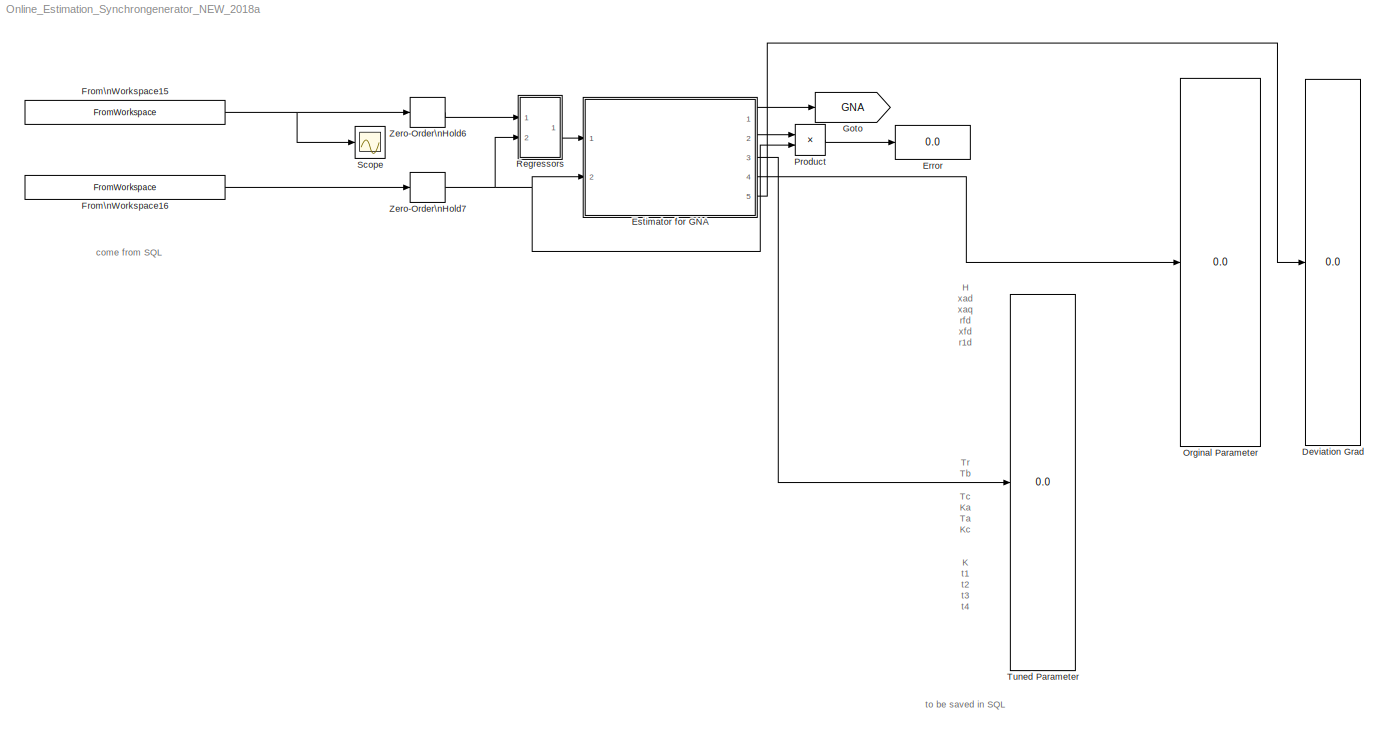
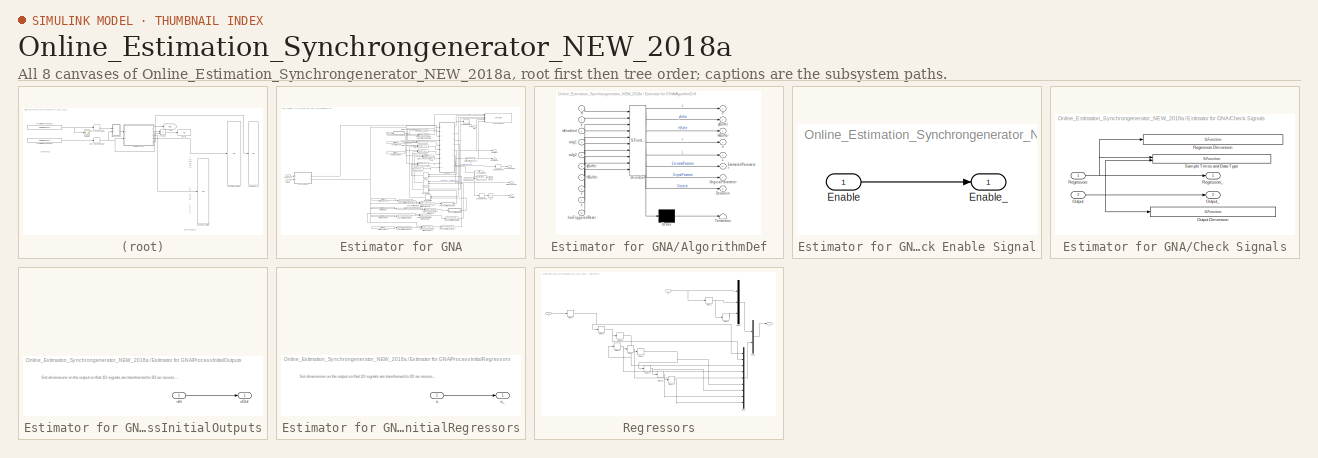
[diagram: thumbnail index - all 8 canvases of the model, root first then tree order]
MODEL Online_Estimation_Synchrongenerator_NEW_2018a
KIND model
BLOCK [Display] Deviation Grad
  Decimation = 1
  Ports = [1]
  SID = 1377
BLOCK [Display] Error
  Decimation = 1
  Ports = [1]
  SID = 1378
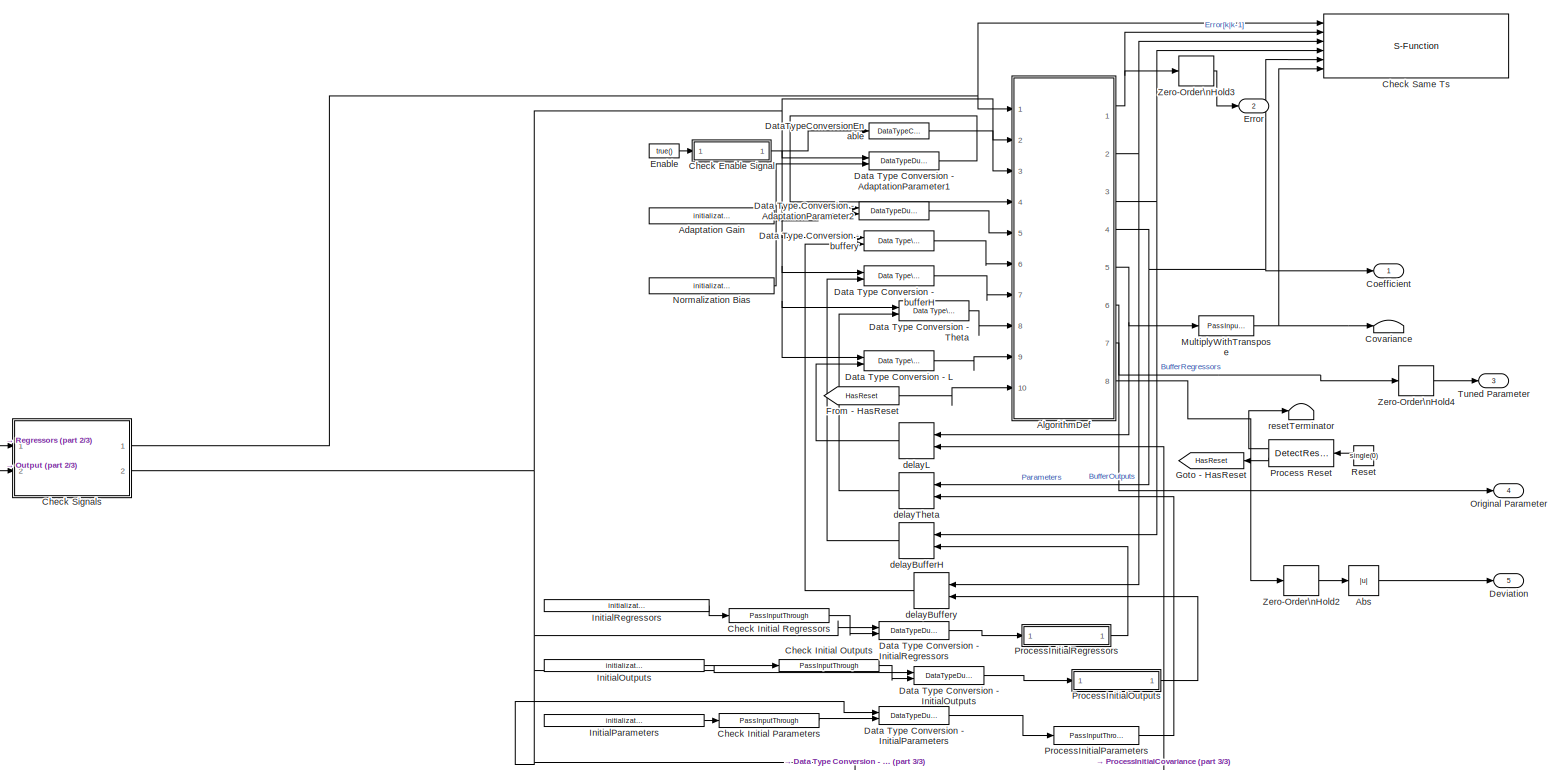
[diagram: Estimator for GNA - part 1/3, most of the canvas]
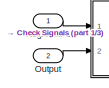
[diagram: Estimator for GNA - part 2/3, middle left region]
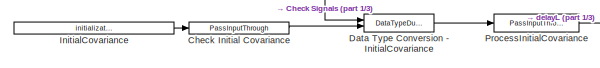
[diagram: Estimator for GNA - part 3/3, bottom center region]
BLOCK [SubSystem] Estimator for GNA
  Ports = [2, 5]
  RequestExecContextInheritance = off
  SID = 1797
BLOCK [Abs] Estimator for GNA/Abs
  SID = 1797:846
  SaturateOnIntegerOverflow = off
BLOCK [Constant] Estimator for GNA/Adaptation Gain
  OutDataTypeStr = Inherit: Inherit via back propagation
  SID = 1797:71
  Value = initializationParams.adg1
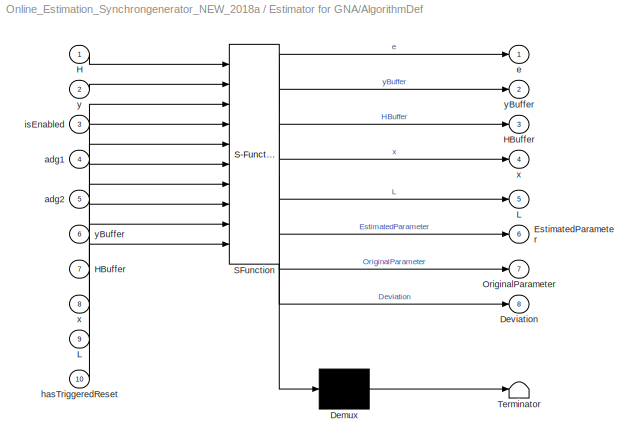
BLOCK [SubSystem] Estimator for GNA/AlgorithmDef
  ErrorFcn = Stateflow.Translate.translate
  PermitHierarchicalResolution = ExplicitOnly
  Ports = [10, 8]
  RequestExecContextInheritance = off
  SFBlockType = MATLAB Function
  SID = 1797:69
  SystemSampleTime = Ts
  TreatAsAtomicUnit = on
BLOCK [Demux] Estimator for GNA/AlgorithmDef/ Demux 
  Outputs = 1
  Ports = [1, 1]
  SID = 1797:69::470
BLOCK [S-Function] Estimator for GNA/AlgorithmDef/ SFunction 
  EnableBusSupport = on
  FunctionName = sf_sfun
  Parameters = algorithmParams
  PortCounts = [10 9]
  Ports = [10, 9]
  SFcnIsStateOwnerBlock = off
  SFunctionDeploymentMode = off
  SID = 1797:69::469
  Tag = Stateflow S-Function Online_Estimation_Synchrongenerator_NEW_2018a 2
BLOCK [Terminator] Estimator for GNA/AlgorithmDef/ Terminator 
  SID = 1797:69::471
BLOCK [Outport] Estimator for GNA/AlgorithmDef/Deviation
  IconDisplay = Port number
  Port = 8
  SID = 1797:69::455
  VectorParamsAs1DForOutWhenUnconnected = on
BLOCK [Outport] Estimator for GNA/AlgorithmDef/EstimatedParameter
  IconDisplay = Port number
  Port = 6
  SID = 1797:69::453
  VectorParamsAs1DForOutWhenUnconnected = on
BLOCK [Inport] Estimator for GNA/AlgorithmDef/H
  IconDisplay = Port number
  SID = 1797:69::23
BLOCK [Outport] Estimator for GNA/AlgorithmDef/HBuffer
  IconDisplay = Port number
  Port = 3
  SID = 1797:69::441
BLOCK [Inport] Estimator for GNA/AlgorithmDef/HBuffer 
  IconDisplay = Port number
  Port = 7
  SID = 1797:69::439
BLOCK [Outport] Estimator for GNA/AlgorithmDef/L
  IconDisplay = Port number
  Port = 5
  SID = 1797:69::36
BLOCK [Inport] Estimator for GNA/AlgorithmDef/L 
  IconDisplay = Port number
  Port = 9
  SID = 1797:69::35
BLOCK [Outport] Estimator for GNA/AlgorithmDef/OriginalParameter
  IconDisplay = Port number
  Port = 7
  SID = 1797:69::454
  VectorParamsAs1DForOutWhenUnconnected = on
BLOCK [Inport] Estimator for GNA/AlgorithmDef/adg1
  IconDisplay = Port number
  Port = 4
  SID = 1797:69::200
BLOCK [Inport] Estimator for GNA/AlgorithmDef/adg2
  IconDisplay = Port number
  Port = 5
  SID = 1797:69::423
BLOCK [Outport] Estimator for GNA/AlgorithmDef/e
  IconDisplay = Port number
  SID = 1797:69::32
BLOCK [Inport] Estimator for GNA/AlgorithmDef/hasTriggeredReset
  IconDisplay = Port number
  Port = 10
  SID = 1797:69::443
BLOCK [Inport] Estimator for GNA/AlgorithmDef/isEnabled
  IconDisplay = Port number
  Port = 3
  SID = 1797:69::58
BLOCK [Outport] Estimator for GNA/AlgorithmDef/x
  IconDisplay = Port number
  Port = 4
  SID = 1797:69::442
BLOCK [Inport] Estimator for GNA/AlgorithmDef/x 
  IconDisplay = Port number
  Port = 8
  SID = 1797:69::440
BLOCK [Inport] Estimator for GNA/AlgorithmDef/y
  IconDisplay = Port number
  Port = 2
  SID = 1797:69::1
BLOCK [Outport] Estimator for GNA/AlgorithmDef/yBuffer
  IconDisplay = Port number
  Port = 2
  SID = 1797:69::49
BLOCK [Inport] Estimator for GNA/AlgorithmDef/yBuffer 
  IconDisplay = Port number
  Port = 6
  SID = 1797:69::48
BLOCK [SubSystem] Estimator for GNA/Check Enable Signal
  Ports = [1, 1]
  RequestExecContextInheritance = off
  SID = 1797:622
BLOCK [Inport] Estimator for GNA/Check Enable Signal/Enable
  IconDisplay = Port number
  SID = 1797:623
BLOCK [Outport] Estimator for GNA/Check Enable Signal/Enable_
  IconDisplay = Port number
  SID = 1797:624
BLOCK [Reference] Estimator for GNA/Check Initial Covariance  REF=ctrlSharedLib/Utilities/PassInputThrough
  AllowZeroVariantControls = off
  GeneratePreprocessorConditionals = off
  Ports = [1, 1]
  PropagateVariantConditions = off
  SID = 1797:809
  ShowPortLabels = FromPortIcon
  SourceBlock = ctrlSharedLib/Utilities/PassInputThrough
  SourceProductBaseCode = CT
  SourceProductName = Control System Toolbox
  SystemSampleTime = -1
BLOCK [Reference] Estimator for GNA/Check Initial Outputs  REF=ctrlSharedLib/Utilities/PassInputThrough
  AllowZeroVariantControls = off
  GeneratePreprocessorConditionals = off
  Ports = [1, 1]
  PropagateVariantConditions = off
  SID = 1797:811
  ShowPortLabels = FromPortIcon
  SourceBlock = ctrlSharedLib/Utilities/PassInputThrough
  SourceProductBaseCode = CT
  SourceProductName = Control System Toolbox
  SystemSampleTime = -1
BLOCK [Reference] Estimator for GNA/Check Initial Parameters  REF=ctrlSharedLib/Utilities/PassInputThrough
  AllowZeroVariantControls = off
  GeneratePreprocessorConditionals = off
  Ports = [1, 1]
  PropagateVariantConditions = off
  SID = 1797:805
  ShowPortLabels = FromPortIcon
  SourceBlock = ctrlSharedLib/Utilities/PassInputThrough
  SourceProductBaseCode = CT
  SourceProductName = Control System Toolbox
  SystemSampleTime = -1
BLOCK [Reference] Estimator for GNA/Check Initial Regressors  REF=ctrlSharedLib/Utilities/PassInputThrough
  AllowZeroVariantControls = off
  GeneratePreprocessorConditionals = off
  Ports = [1, 1]
  PropagateVariantConditions = off
  SID = 1797:812
  ShowPortLabels = FromPortIcon
  SourceBlock = ctrlSharedLib/Utilities/PassInputThrough
  SourceProductBaseCode = CT
  SourceProductName = Control System Toolbox
  SystemSampleTime = -1
BLOCK [S-Function] Estimator for GNA/Check Same Ts
  EnableBusSupport = off
  FunctionName = idRecursiveEstimationCheckSameTs
  Parameters = get_param(gcbh,'Parent'), uint16(6)
  Ports = [6]
  SFcnIsStateOwnerBlock = off
  SFunctionDeploymentMode = off
  SID = 1797:827
BLOCK [SubSystem] Estimator for GNA/Check Signals
  Ports = [2, 2]
  RequestExecContextInheritance = off
  SID = 1797:460
BLOCK [Inport] Estimator for GNA/Check Signals/Output
  IconDisplay = Port number
  Port = 2
  SID = 1797:533
BLOCK [S-Function] Estimator for GNA/Check Signals/Output Dimension
  EnableBusSupport = off
  FunctionName = idRecursiveEstimationCheckSignalDimensionOutput
  Parameters = csp.estimatorBlockPath, csp.isUsingFrames
  Ports = [1]
  SFcnIsStateOwnerBlock = off
  SFunctionDeploymentMode = off
  SID = 1797:534
BLOCK [Outport] Estimator for GNA/Check Signals/Output_
  IconDisplay = Port number
  Port = 2
  SID = 1797:538
BLOCK [Inport] Estimator for GNA/Check Signals/Regressors
  IconDisplay = Port number
  SID = 1797:532
BLOCK [S-Function] Estimator for GNA/Check Signals/Regressors Dimension
  EnableBusSupport = off
  FunctionName = idRecursiveEstimationCheckSignalDimensionRLSRegressors
  Parameters = csp.estimatorBlockPath, csp.isInitialEstimateSourceInternal, algorithmParams.nParameters, csp.isUsingFrames
  Ports = [1]
  SFcnIsStateOwnerBlock = off
  SFunctionDeploymentMode = off
  SID = 1797:535
BLOCK [Outport] Estimator for GNA/Check Signals/Regressors_
  IconDisplay = Port number
  SID = 1797:537
BLOCK [S-Function] Estimator for GNA/Check Signals/Sample Times and Data Type
  EnableBusSupport = off
  FunctionName = idRecursiveEstimationCheckSignalTsAndDataType
  Parameters = csp.estimatorBlockPath, Ts, 'Regressors', 'Output',algorithmParams.nParameters
  Ports = [2]
  SFcnIsStateOwnerBlock = off
  SFunctionDeploymentMode = off
  SID = 1797:536
BLOCK [Outport] Estimator for GNA/Coefficient
  IconDisplay = Port number
  SID = 1797:79
  SignalType = real
  VarSizeSig = No
BLOCK [Terminator] Estimator for GNA/Covariance
  SID = 1797:97
BLOCK [Reference] Estimator for GNA/Data Type Conversion - AdaptationParameter1  REF=ctrlSharedLib/Utilities/DataTypeDuplicateAndOutput
  AllowZeroVariantControls = off
  GeneratePreprocessorConditionals = off
  Ports = [2, 1]
  PropagateVariantConditions = off
  SID = 1797:782
  ShowPortLabels = FromPortIcon
  SourceBlock = ctrlSharedLib/Utilities/DataTypeDuplicateAndOutput
  SourceProductBaseCode = CT
  SourceProductName = Control System Toolbox
  SourceType = ctrlDataTypeDuplicateAndOutput
  SystemSampleTime = -1
BLOCK [Reference] Estimator for GNA/Data Type Conversion - AdaptationParameter2  REF=ctrlSharedLib/Utilities/DataTypeDuplicateAndOutput
  AllowZeroVariantControls = off
  GeneratePreprocessorConditionals = off
  Ports = [2, 1]
  PropagateVariantConditions = off
  SID = 1797:784
  ShowPortLabels = FromPortIcon
  SourceBlock = ctrlSharedLib/Utilities/DataTypeDuplicateAndOutput
  SourceProductBaseCode = CT
  SourceProductName = Control System Toolbox
  SourceType = ctrlDataTypeDuplicateAndOutput
  SystemSampleTime = -1
BLOCK [Reference] Estimator for GNA/Data Type Conversion - InitialCovariance  REF=ctrlSharedLib/Utilities/DataTypeDuplicateAndOutput
  AllowZeroVariantControls = off
  GeneratePreprocessorConditionals = off
  Ports = [2, 1]
  PropagateVariantConditions = off
  SID = 1797:810
  ShowPortLabels = FromPortIcon
  SourceBlock = ctrlSharedLib/Utilities/DataTypeDuplicateAndOutput
  SourceProductBaseCode = CT
  SourceProductName = Control System Toolbox
  SourceType = ctrlDataTypeDuplicateAndOutput
  SystemSampleTime = -1
BLOCK [Reference] Estimator for GNA/Data Type Conversion - InitialOutputs  REF=ctrlSharedLib/Utilities/DataTypeDuplicateAndOutput
  AllowZeroVariantControls = off
  GeneratePreprocessorConditionals = off
  Ports = [2, 1]
  PropagateVariantConditions = off
  SID = 1797:813
  ShowPortLabels = FromPortIcon
  SourceBlock = ctrlSharedLib/Utilities/DataTypeDuplicateAndOutput
  SourceProductBaseCode = CT
  SourceProductName = Control System Toolbox
  SourceType = ctrlDataTypeDuplicateAndOutput
  SystemSampleTime = -1
BLOCK [Reference] Estimator for GNA/Data Type Conversion - InitialParameters  REF=ctrlSharedLib/Utilities/DataTypeDuplicateAndOutput
  AllowZeroVariantControls = off
  GeneratePreprocessorConditionals = off
  Ports = [2, 1]
  PropagateVariantConditions = off
  SID = 1797:806
  ShowPortLabels = FromPortIcon
  SourceBlock = ctrlSharedLib/Utilities/DataTypeDuplicateAndOutput
  SourceProductBaseCode = CT
  SourceProductName = Control System Toolbox
  SourceType = ctrlDataTypeDuplicateAndOutput
  SystemSampleTime = -1
BLOCK [Reference] Estimator for GNA/Data Type Conversion - InitialRegressors  REF=ctrlSharedLib/Utilities/DataTypeDuplicateAndOutput
  AllowZeroVariantControls = off
  GeneratePreprocessorConditionals = off
  Ports = [2, 1]
  PropagateVariantConditions = off
  SID = 1797:814
  ShowPortLabels = FromPortIcon
  SourceBlock = ctrlSharedLib/Utilities/DataTypeDuplicateAndOutput
  SourceProductBaseCode = CT
  SourceProductName = Control System Toolbox
  SourceType = ctrlDataTypeDuplicateAndOutput
  SystemSampleTime = -1
BLOCK [Reference] Estimator for GNA/Data Type Conversion - L  REF=simulink/Signal\nAttributes/Data Type\nConversion\nInherited
  ConvertRealWorld = Real World Value
  DoSatur = off
  Ports = [2, 1]
  RndMeth = Floor
  SID = 1797:64
  SourceBlock = simulink/Signal\nAttributes/Data Type\nConversion\nInherited
  SourceProductBaseCode = SL
  SourceProductName = Simulink
  SourceType = Conversion Inherited
BLOCK [Reference] Estimator for GNA/Data Type Conversion - Theta  REF=simulink/Signal\nAttributes/Data Type\nConversion\nInherited
  ConvertRealWorld = Real World Value
  DoSatur = off
  Ports = [2, 1]
  RndMeth = Floor
  SID = 1797:63
  SourceBlock = simulink/Signal\nAttributes/Data Type\nConversion\nInherited
  SourceProductBaseCode = SL
  SourceProductName = Simulink
  SourceType = Conversion Inherited
BLOCK [Reference] Estimator for GNA/Data Type Conversion - bufferH  REF=simulink/Signal\nAttributes/Data Type\nConversion\nInherited
  ConvertRealWorld = Real World Value
  DoSatur = off
  Ports = [2, 1]
  RndMeth = Floor
  SID = 1797:793
  SourceBlock = simulink/Signal\nAttributes/Data Type\nConversion\nInherited
  SourceProductBaseCode = SL
  SourceProductName = Simulink
  SourceType = Conversion Inherited
BLOCK [Reference] Estimator for GNA/Data Type Conversion - buffery  REF=simulink/Signal\nAttributes/Data Type\nConversion\nInherited
  ConvertRealWorld = Real World Value
  DoSatur = off
  Ports = [2, 1]
  RndMeth = Floor
  SID = 1797:794
  SourceBlock = simulink/Signal\nAttributes/Data Type\nConversion\nInherited
  SourceProductBaseCode = SL
  SourceProductName = Simulink
  SourceType = Conversion Inherited
BLOCK [DataTypeConversion] Estimator for GNA/DataTypeConversionEnable
  OutDataTypeStr = boolean
  RndMeth = Floor
  SID = 1797:766
  SaturateOnIntegerOverflow = off
BLOCK [Outport] Estimator for GNA/Deviation
  IconDisplay = Port number
  Port = 5
  SID = 1797:845
  VectorParamsAs1DForOutWhenUnconnected = on
BLOCK [Constant] Estimator for GNA/Enable
  OutDataTypeStr = boolean
  SID = 1797:95
  Value = true()
BLOCK [Outport] Estimator for GNA/Error
  IconDisplay = Port number
  Port = 2
  SID = 1797:837
  VectorParamsAs1DForOutWhenUnconnected = on
BLOCK [From] Estimator for GNA/From - HasReset
  GotoTag = HasReset
  SID = 1797:822
BLOCK [Goto] Estimator for GNA/Goto - HasReset
  GotoTag = HasReset
  SID = 1797:821
BLOCK [Constant] Estimator for GNA/InitialCovariance
  OutDataTypeStr = Inherit: Inherit via back propagation
  SID = 1797:807
  Value = initializationParams.L0
BLOCK [Constant] Estimator for GNA/InitialOutputs
  OutDataTypeStr = Inherit: Inherit via back propagation
  SID = 1797:815
  Value = initializationParams.initialOutputs
  VectorParams1D = off
BLOCK [Constant] Estimator for GNA/InitialParameters
  OutDataTypeStr = Inherit: Inherit via back propagation
  SID = 1797:803
  Value = initializationParams.theta0
  VectorParams1D = off
BLOCK [Constant] Estimator for GNA/InitialRegressors
  OutDataTypeStr = Inherit: Inherit via back propagation
  SID = 1797:816
  Value = initializationParams.initialRegressors
  VectorParams1D = off
BLOCK [Reference] Estimator for GNA/MultiplyWithTranspose  REF=ctrlSharedLib/Utilities/PassInputThrough
  AllowZeroVariantControls = off
  GeneratePreprocessorConditionals = off
  Ports = [1, 1]
  PropagateVariantConditions = off
  SID = 1797:767
  ShowPortLabels = FromPortIcon
  SourceBlock = ctrlSharedLib/Utilities/PassInputThrough
  SourceProductBaseCode = CT
  SourceProductName = Control System Toolbox
  SystemSampleTime = -1
BLOCK [Constant] Estimator for GNA/Normalization Bias
  OutDataTypeStr = Inherit: Inherit via back propagation
  SID = 1797:769
  Value = initializationParams.adg2
BLOCK [Outport] Estimator for GNA/Original Parameter
  IconDisplay = Port number
  Port = 4
  SID = 1797:844
  VectorParamsAs1DForOutWhenUnconnected = on
BLOCK [Inport] Estimator for GNA/Output
  IconDisplay = Port number
  Port = 2
  SID = 1797:57
  SignalType = real
  VarSizeSig = No
BLOCK [Reference] Estimator for GNA/Process Reset  REF=ctrlSharedLib/Utilities/DetectReset
  ExternalReset = None
  Ports = [1, 2]
  SID = 1797:820
  SourceBlock = ctrlSharedLib/Utilities/DetectReset
  SourceProductBaseCode = CT
  SourceProductName = Control System Toolbox
BLOCK [Reference] Estimator for GNA/ProcessInitialCovariance  REF=ctrlSharedLib/Utilities/PassInputThrough
  AllowZeroVariantControls = off
  GeneratePreprocessorConditionals = off
  Ports = [1, 1]
  PropagateVariantConditions = off
  SID = 1797:808
  ShowPortLabels = FromPortIcon
  SourceBlock = ctrlSharedLib/Utilities/PassInputThrough
  SourceProductBaseCode = CT
  SourceProductName = Control System Toolbox
  SystemSampleTime = -1
BLOCK [SubSystem] Estimator for GNA/ProcessInitialOutputs
  Ports = [1, 1]
  RequestExecContextInheritance = off
  SID = 1797:833
BLOCK [Inport] Estimator for GNA/ProcessInitialOutputs/uIn
  IconDisplay = Port number
  SID = 1797:834
BLOCK [Outport] Estimator for GNA/ProcessInitialOutputs/uOut
  IconDisplay = Port number
  PortDimensions = dimParams.Outputs.yBuffer
  SID = 1797:835
BLOCK [Reference] Estimator for GNA/ProcessInitialParameters  REF=ctrlSharedLib/Utilities/PassInputThrough
  AllowZeroVariantControls = off
  GeneratePreprocessorConditionals = off
  Ports = [1, 1]
  PropagateVariantConditions = off
  SID = 1797:804
  ShowPortLabels = FromPortIcon
  SourceBlock = ctrlSharedLib/Utilities/PassInputThrough
  SourceProductBaseCode = CT
  SourceProductName = Control System Toolbox
  SystemSampleTime = -1
BLOCK [SubSystem] Estimator for GNA/ProcessInitialRegressors
  Ports = [1, 1]
  RequestExecContextInheritance = off
  SID = 1797:828
BLOCK [Inport] Estimator for GNA/ProcessInitialRegressors/u
  IconDisplay = Port number
  SID = 1797:829
BLOCK [Outport] Estimator for GNA/ProcessInitialRegressors/u_
  IconDisplay = Port number
  PortDimensions = dimParams.Outputs.HBuffer
  SID = 1797:830
BLOCK [Inport] Estimator for GNA/Regressors
  IconDisplay = Port number
  SID = 1797:56
  SignalType = real
  VarSizeSig = No
BLOCK [Constant] Estimator for GNA/Reset
  SID = 1797:853
  Value = single(0)
BLOCK [Outport] Estimator for GNA/Tuned Parameter
  IconDisplay = Port number
  Port = 3
  SID = 1797:839
  VectorParamsAs1DForOutWhenUnconnected = on
BLOCK [ZeroOrderHold] Estimator for GNA/Zero-Order\nHold2
  SID = 1797:847
  SampleTime = 5
BLOCK [ZeroOrderHold] Estimator for GNA/Zero-Order\nHold3
  SID = 1797:848
  SampleTime = 5
BLOCK [ZeroOrderHold] Estimator for GNA/Zero-Order\nHold4
  SID = 1797:850
  SampleTime = 0.5
BLOCK [Delay] Estimator for GNA/delayBufferH
  DelayLength = 1
  InitialConditionSource = Input port
  InputPortMap = u0,p4
  Ports = [2, 1]
  SID = 1797:790
BLOCK [Delay] Estimator for GNA/delayBuffery
  DelayLength = 1
  InitialConditionSource = Input port
  InputPortMap = u0,p4
  Ports = [2, 1]
  SID = 1797:789
BLOCK [Delay] Estimator for GNA/delayL
  DelayLength = 1
  InitialConditionSource = Input port
  InputPortMap = u0,p4
  Ports = [2, 1]
  SID = 1797:72
BLOCK [Delay] Estimator for GNA/delayTheta
  DelayLength = 1
  InitialConditionSource = Input port
  InputPortMap = u0,p4
  Ports = [2, 1]
  SID = 1797:73
BLOCK [Terminator] Estimator for GNA/resetTerminator
  SID = 1797:825
BLOCK [FromWorkspace] From\nWorkspace15
  SID = 1373
  VariableName = [input(:,1), input(:,2)]
  ZeroCross = on
BLOCK [FromWorkspace] From\nWorkspace16
  SID = 1374
  VariableName = [input(:,1), input(:,3)]
  ZeroCross = on
BLOCK [Goto] Goto
  GotoTag = GNA
  SID = 1423
BLOCK [Display] Orginal Parameter
  Decimation = 1
  Ports = [1]
  SID = 1381
BLOCK [Product] Product
  InputSameDT = off
  Inputs = */
  OutDataTypeStr = Inherit: Inherit via internal rule
  Ports = [2, 1]
  RndMeth = Floor
  SID = 1382
  SaturateOnIntegerOverflow = off
BLOCK [SubSystem] Regressors
  Ports = [2, 1]
  RequestExecContextInheritance = off
  SID = 1387
BLOCK [Delay] Regressors/Delay1
  DelayLength = 1
  InitialCondition = 1
  InputPortMap = u0
  Ports = [1, 1]
  SID = 1390
  SampleTime = Ts
BLOCK [Delay] Regressors/Delay10
  DelayLength = 1
  InitialCondition = 2
  InputPortMap = u0
  Ports = [1, 1]
  SID = 1391
  SampleTime = Ts
BLOCK [Delay] Regressors/Delay11
  DelayLength = 1
  InitialCondition = 2
  InputPortMap = u0
  Ports = [1, 1]
  SID = 1392
  SampleTime = Ts
BLOCK [Delay] Regressors/Delay2
  DelayLength = 1
  InitialCondition = 2
  InputPortMap = u0
  Ports = [1, 1]
  SID = 1393
  SampleTime = Ts
BLOCK [Delay] Regressors/Delay3
  DelayLength = 1
  InitialCondition = 2
  InputPortMap = u0
  Ports = [1, 1]
  SID = 1394
  SampleTime = Ts
BLOCK [Delay] Regressors/Delay4
  DelayLength = 1
  InitialCondition = 2
  InputPortMap = u0
  Ports = [1, 1]
  SID = 1395
  SampleTime = Ts
BLOCK [Delay] Regressors/Delay5
  DelayLength = 1
  InitialCondition = 2
  InputPortMap = u0
  Ports = [1, 1]
  SID = 1396
  SampleTime = Ts
BLOCK [Delay] Regressors/Delay6
  DelayLength = 1
  InitialCondition = 1
  InputPortMap = u0
  Ports = [1, 1]
  SID = 1397
  SampleTime = Ts
BLOCK [Delay] Regressors/Delay7
  DelayLength = 1
  InitialCondition = 2
  InputPortMap = u0
  Ports = [1, 1]
  SID = 1398
  SampleTime = Ts
BLOCK [Delay] Regressors/Delay8
  DelayLength = 1
  InitialCondition = 2
  InputPortMap = u0
  Ports = [1, 1]
  SID = 1399
  SampleTime = Ts
BLOCK [Delay] Regressors/Delay9
  DelayLength = 1
  InitialCondition = 2
  InputPortMap = u0
  Ports = [1, 1]
  SID = 1400
  SampleTime = Ts
BLOCK [Mux] Regressors/Mux1
  DisplayOption = bar
  Inputs = 9
  Ports = [9, 1]
  SID = 1401
BLOCK [Mux] Regressors/Mux2
  DisplayOption = bar
  Inputs = 2
  Ports = [2, 1]
  SID = 1402
BLOCK [Mux] Regressors/Mux3
  DisplayOption = bar
  Inputs = 3
  Ports = [3, 1]
  SID = 1403
BLOCK [Outport] Regressors/r
  IconDisplay = Port number
  SID = 1404
BLOCK [Inport] Regressors/u
  IconDisplay = Port number
  SID = 1388
BLOCK [Inport] Regressors/y
  IconDisplay = Port number
  Port = 2
  SID = 1389
BLOCK [Scope] Scope
  Floating = off
  NumInputPorts = 1
  Ports = [1]
  SID = 1808
  ScopeSpecificationString = Simulink.scopes.TimeScopeBlockCfg('CurrentConfiguration', extmgr.ConfigurationSet(extmgr.Configuration('Core','General UI',true),extmgr.Configuration('Core','Source UI',true),extmgr.Configuration('Sources','WiredSimulink',true),extmgr.Configuration('Visuals','Time Domain',true,'SerializedDisplays',{struct('MinYLimReal','0.95898','MaxYLimReal','0.97852','YLabelReal','','MinYLimMag','0.95898','MaxYL...<+1432ch>
BLOCK [Display] Tuned Parameter
  Decimation = 1
  Ports = [1]
  SID = 1383
BLOCK [ZeroOrderHold] Zero-Order\nHold6
  SID = 640
  SampleTime = Ts
BLOCK [ZeroOrderHold] Zero-Order\nHold7
  SID = 641
  SampleTime = Ts
ANNOTATION (root): H\nxad\nxaq\nrfd\nxfd\nr1d\nx1d\nr1q\nx1q\nr2q\nx2q
ANNOTATION (root): K\nt1\nt2\nt3\nt4
ANNOTATION (root): Tr\nTb\nTc\nKa\nTa\nKc
ANNOTATION (root): come from SQL
ANNOTATION (root): to be saved in SQL
ANNOTATION Estimator for GNA/ProcessInitialOutputs: Set dimensions on the output so that 1D signals are transformed to 2D as necessary per the Delay block
ANNOTATION Estimator for GNA/ProcessInitialRegressors: Set dimensions on the output so that 1D signals are transformed to 2D as necessary per the Delay block
LINE Estimator for GNA/Abs:1 -> Estimator for GNA/Deviation:1
LINE Estimator for GNA/Adaptation Gain:1 -> Estimator for GNA/Data Type Conversion - AdaptationParameter1:2
LINE Estimator for GNA/AlgorithmDef/ Demux :1 -> Estimator for GNA/AlgorithmDef/ Terminator :1
LINE Estimator for GNA/AlgorithmDef/ SFunction :1 -> Estimator for GNA/AlgorithmDef/ Demux :1
LINE Estimator for GNA/AlgorithmDef/ SFunction :2 -> Estimator for GNA/AlgorithmDef/e:1
LINE Estimator for GNA/AlgorithmDef/ SFunction :3 -> Estimator for GNA/AlgorithmDef/yBuffer:1
LINE Estimator for GNA/AlgorithmDef/ SFunction :4 -> Estimator for GNA/AlgorithmDef/HBuffer:1
LINE Estimator for GNA/AlgorithmDef/ SFunction :5 -> Estimator for GNA/AlgorithmDef/x:1
LINE Estimator for GNA/AlgorithmDef/ SFunction :6 -> Estimator for GNA/AlgorithmDef/L:1
LINE Estimator for GNA/AlgorithmDef/ SFunction :7 -> Estimator for GNA/AlgorithmDef/EstimatedParameter:1
LINE Estimator for GNA/AlgorithmDef/ SFunction :8 -> Estimator for GNA/AlgorithmDef/OriginalParameter:1
LINE Estimator for GNA/AlgorithmDef/ SFunction :9 -> Estimator for GNA/AlgorithmDef/Deviation:1
LINE Estimator for GNA/AlgorithmDef/H:1 -> Estimator for GNA/AlgorithmDef/ SFunction :1
LINE Estimator for GNA/AlgorithmDef/HBuffer :1 -> Estimator for GNA/AlgorithmDef/ SFunction :7
LINE Estimator for GNA/AlgorithmDef/L :1 -> Estimator for GNA/AlgorithmDef/ SFunction :9
LINE Estimator for GNA/AlgorithmDef/adg1:1 -> Estimator for GNA/AlgorithmDef/ SFunction :4
LINE Estimator for GNA/AlgorithmDef/adg2:1 -> Estimator for GNA/AlgorithmDef/ SFunction :5
LINE Estimator for GNA/AlgorithmDef/hasTriggeredReset:1 -> Estimator for GNA/AlgorithmDef/ SFunction :10
LINE Estimator for GNA/AlgorithmDef/isEnabled:1 -> Estimator for GNA/AlgorithmDef/ SFunction :3
LINE Estimator for GNA/AlgorithmDef/x :1 -> Estimator for GNA/AlgorithmDef/ SFunction :8
LINE Estimator for GNA/AlgorithmDef/y:1 -> Estimator for GNA/AlgorithmDef/ SFunction :2
LINE Estimator for GNA/AlgorithmDef/yBuffer :1 -> Estimator for GNA/AlgorithmDef/ SFunction :6
NET Estimator for GNA/AlgorithmDef:1 -> Estimator for GNA/Check Same Ts:2, Estimator for GNA/Zero-Order\nHold3:1
NET Estimator for GNA/AlgorithmDef:2 -> Estimator for GNA/Check Same Ts:3, Estimator for GNA/delayBuffery:1
NET Estimator for GNA/AlgorithmDef:3 -> Estimator for GNA/Check Same Ts:4, Estimator for GNA/delayBufferH:1
NET Estimator for GNA/AlgorithmDef:4 -> Estimator for GNA/Check Same Ts:5, Estimator for GNA/Coefficient:1, Estimator for GNA/delayTheta:1
NET Estimator for GNA/AlgorithmDef:5 -> Estimator for GNA/MultiplyWithTranspose:1, Estimator for GNA/delayL:1
LINE Estimator for GNA/AlgorithmDef:6 -> Estimator for GNA/Zero-Order\nHold4:1
LINE Estimator for GNA/AlgorithmDef:7 -> Estimator for GNA/Original Parameter:1
LINE Estimator for GNA/AlgorithmDef:8 -> Estimator for GNA/Zero-Order\nHold2:1
LINE Estimator for GNA/Check Enable Signal/Enable:1 -> Estimator for GNA/Check Enable Signal/Enable_:1
LINE Estimator for GNA/Check Enable Signal:1 -> Estimator for GNA/DataTypeConversionEnable:1
LINE Estimator for GNA/Check Initial Covariance:1 -> Estimator for GNA/Data Type Conversion - InitialCovariance:2
LINE Estimator for GNA/Check Initial Outputs:1 -> Estimator for GNA/Data Type Conversion - InitialOutputs:2
LINE Estimator for GNA/Check Initial Parameters:1 -> Estimator for GNA/Data Type Conversion - InitialParameters:2
LINE Estimator for GNA/Check Initial Regressors:1 -> Estimator for GNA/Data Type Conversion - InitialRegressors:2
NET Estimator for GNA/Check Signals/Output:1 -> Estimator for GNA/Check Signals/Output Dimension:1, Estimator for GNA/Check Signals/Output_:1, Estimator for GNA/Check Signals/Sample Times and Data Type:2
NET Estimator for GNA/Check Signals/Regressors:1 -> Estimator for GNA/Check Signals/Regressors Dimension:1, Estimator for GNA/Check Signals/Regressors_:1, Estimator for GNA/Check Signals/Sample Times and Data Type:1
NET Estimator for GNA/Check Signals:1 -> Estimator for GNA/AlgorithmDef:1, Estimator for GNA/Check Same Ts:1
NET Estimator for GNA/Check Signals:2 -> Estimator for GNA/AlgorithmDef:2, Estimator for GNA/Data Type Conversion - AdaptationParameter1:1, Estimator for GNA/Data Type Conversion - AdaptationParameter2:1, Estimator for GNA/Data Type Conversion - InitialCovariance:1, Estimator for GNA/Data Type Conversion - InitialOutputs:1, Estimator for GNA/Data Type Conversion - InitialParameters:1, Estimator for GNA/Data Type Conversion - InitialRegressors:1, Estimator for GNA/Data Type Conversion - L:1, Estimator for GNA/Data Type Conversion - Theta:1, Estimator for GNA/Data Type Conversion - bufferH:1, Estimator for GNA/Data Type Conversion - buffery:1
LINE Estimator for GNA/Data Type Conversion - AdaptationParameter1:1 -> Estimator for GNA/AlgorithmDef:4
LINE Estimator for GNA/Data Type Conversion - AdaptationParameter2:1 -> Estimator for GNA/AlgorithmDef:5
LINE Estimator for GNA/Data Type Conversion - InitialCovariance:1 -> Estimator for GNA/ProcessInitialCovariance:1
LINE Estimator for GNA/Data Type Conversion - InitialOutputs:1 -> Estimator for GNA/ProcessInitialOutputs:1
LINE Estimator for GNA/Data Type Conversion - InitialParameters:1 -> Estimator for GNA/ProcessInitialParameters:1
LINE Estimator for GNA/Data Type Conversion - InitialRegressors:1 -> Estimator for GNA/ProcessInitialRegressors:1
LINE Estimator for GNA/Data Type Conversion - L:1 -> Estimator for GNA/AlgorithmDef:9
LINE Estimator for GNA/Data Type Conversion - Theta:1 -> Estimator for GNA/AlgorithmDef:8
LINE Estimator for GNA/Data Type Conversion - bufferH:1 -> Estimator for GNA/AlgorithmDef:7
LINE Estimator for GNA/Data Type Conversion - buffery:1 -> Estimator for GNA/AlgorithmDef:6
LINE Estimator for GNA/DataTypeConversionEnable:1 -> Estimator for GNA/AlgorithmDef:3
LINE Estimator for GNA/Enable:1 -> Estimator for GNA/Check Enable Signal:1
LINE Estimator for GNA/From - HasReset:1 -> Estimator for GNA/AlgorithmDef:10
LINE Estimator for GNA/InitialCovariance:1 -> Estimator for GNA/Check Initial Covariance:1
LINE Estimator for GNA/InitialOutputs:1 -> Estimator for GNA/Check Initial Outputs:1
LINE Estimator for GNA/InitialParameters:1 -> Estimator for GNA/Check Initial Parameters:1
LINE Estimator for GNA/InitialRegressors:1 -> Estimator for GNA/Check Initial Regressors:1
NET Estimator for GNA/MultiplyWithTranspose:1 -> Estimator for GNA/Check Same Ts:6, Estimator for GNA/Covariance:1
LINE Estimator for GNA/Normalization Bias:1 -> Estimator for GNA/Data Type Conversion - AdaptationParameter2:2
LINE Estimator for GNA/Output:1 -> Estimator for GNA/Check Signals:2
LINE Estimator for GNA/Process Reset:1 -> Estimator for GNA/resetTerminator:1
LINE Estimator for GNA/Process Reset:2 -> Estimator for GNA/Goto - HasReset:1
LINE Estimator for GNA/ProcessInitialCovariance:1 -> Estimator for GNA/delayL:2
LINE Estimator for GNA/ProcessInitialOutputs/uIn:1 -> Estimator for GNA/ProcessInitialOutputs/uOut:1
LINE Estimator for GNA/ProcessInitialOutputs:1 -> Estimator for GNA/delayBuffery:2
LINE Estimator for GNA/ProcessInitialParameters:1 -> Estimator for GNA/delayTheta:2
LINE Estimator for GNA/ProcessInitialRegressors/u:1 -> Estimator for GNA/ProcessInitialRegressors/u_:1
LINE Estimator for GNA/ProcessInitialRegressors:1 -> Estimator for GNA/delayBufferH:2
LINE Estimator for GNA/Regressors:1 -> Estimator for GNA/Check Signals:1
LINE Estimator for GNA/Reset:1 -> Estimator for GNA/Process Reset:1
LINE Estimator for GNA/Zero-Order\nHold2:1 -> Estimator for GNA/Abs:1
LINE Estimator for GNA/Zero-Order\nHold3:1 -> Estimator for GNA/Error:1
LINE Estimator for GNA/Zero-Order\nHold4:1 -> Estimator for GNA/Tuned Parameter:1
LINE Estimator for GNA/delayBufferH:1 -> Estimator for GNA/Data Type Conversion - bufferH:2
LINE Estimator for GNA/delayBuffery:1 -> Estimator for GNA/Data Type Conversion - buffery:2
LINE Estimator for GNA/delayL:1 -> Estimator for GNA/Data Type Conversion - L:2
LINE Estimator for GNA/delayTheta:1 -> Estimator for GNA/Data Type Conversion - Theta:2
LINE Estimator for GNA:1 -> Goto:1
LINE Estimator for GNA:2 -> Product:1
LINE Estimator for GNA:3 -> Tuned Parameter:1
LINE Estimator for GNA:4 -> Orginal Parameter:1
LINE Estimator for GNA:5 -> Deviation Grad:1
NET From\nWorkspace15:1 -> Scope:1, Zero-Order\nHold6:1
LINE From\nWorkspace16:1 -> Zero-Order\nHold7:1
LINE Product:1 -> Error:1
NET Regressors/Delay10:1 -> Regressors/Delay11:1, Regressors/Mux1:8
LINE Regressors/Delay11:1 -> Regressors/Mux1:9
NET Regressors/Delay1:1 -> Regressors/Delay6:1, Regressors/Mux3:2
NET Regressors/Delay2:1 -> Regressors/Delay5:1, Regressors/Mux1:1
NET Regressors/Delay3:1 -> Regressors/Delay4:1, Regressors/Mux1:3
NET Regressors/Delay4:1 -> Regressors/Delay7:1, Regressors/Mux1:4
NET Regressors/Delay5:1 -> Regressors/Delay3:1, Regressors/Mux1:2
LINE Regressors/Delay6:1 -> Regressors/Mux3:3
NET Regressors/Delay7:1 -> Regressors/Delay8:1, Regressors/Mux1:5
NET Regressors/Delay8:1 -> Regressors/Delay9:1, Regressors/Mux1:6
NET Regressors/Delay9:1 -> Regressors/Delay10:1, Regressors/Mux1:7
LINE Regressors/Mux1:1 -> Regressors/Mux2:2
LINE Regressors/Mux2:1 -> Regressors/r:1
LINE Regressors/Mux3:1 -> Regressors/Mux2:1
NET Regressors/u:1 -> Regressors/Delay1:1, Regressors/Mux3:1
LINE Regressors/y:1 -> Regressors/Delay2:1
LINE Regressors:1 -> Estimator for GNA:1
LINE Zero-Order\nHold6:1 -> Regressors:1
NET Zero-Order\nHold7:1 -> Estimator for GNA:2, Product:2, Regressors:2
note: NET lines group one-source signal fan-out (src -> all destinations, sorted); 1:1 wires keep LINE
CHART Estimator for GNA/AlgorithmDef states=1 transitions=1
  STATE_LABEL 'eML_blk_kernel()'
